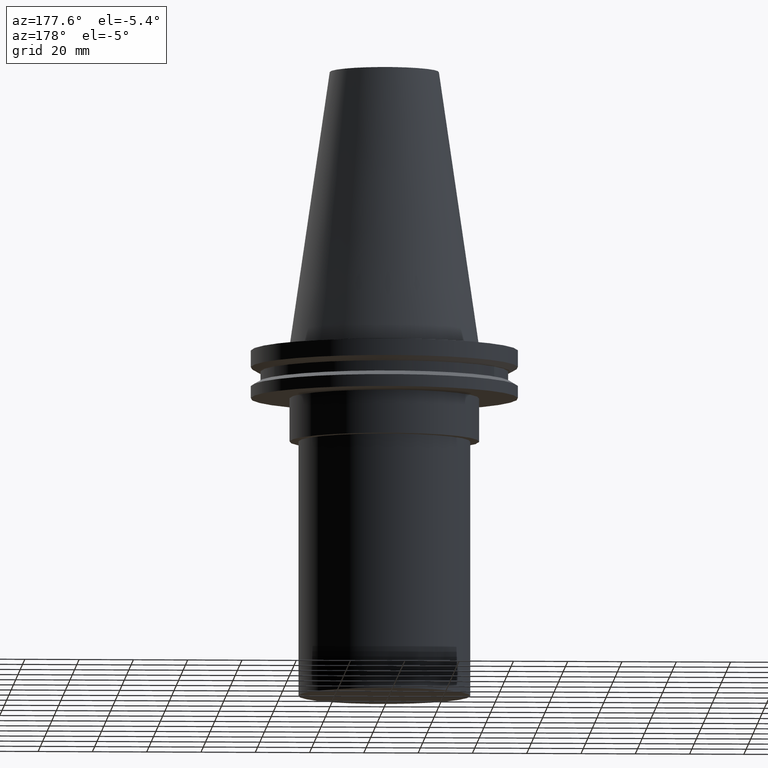
[diagram: clean part render]
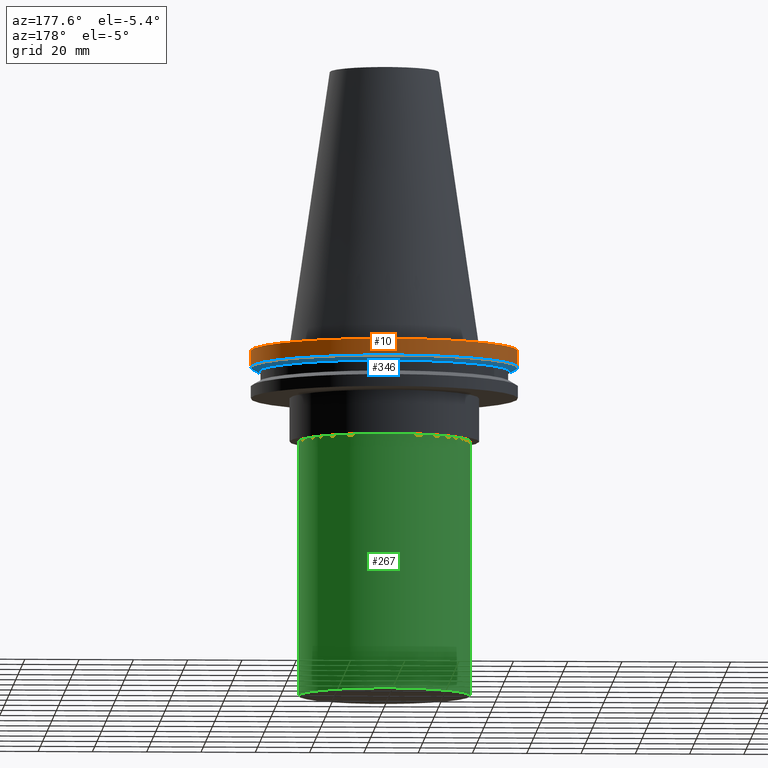
[diagram: same view with three faces highlighted in distinct colors, each labeled with its STEP entity id]
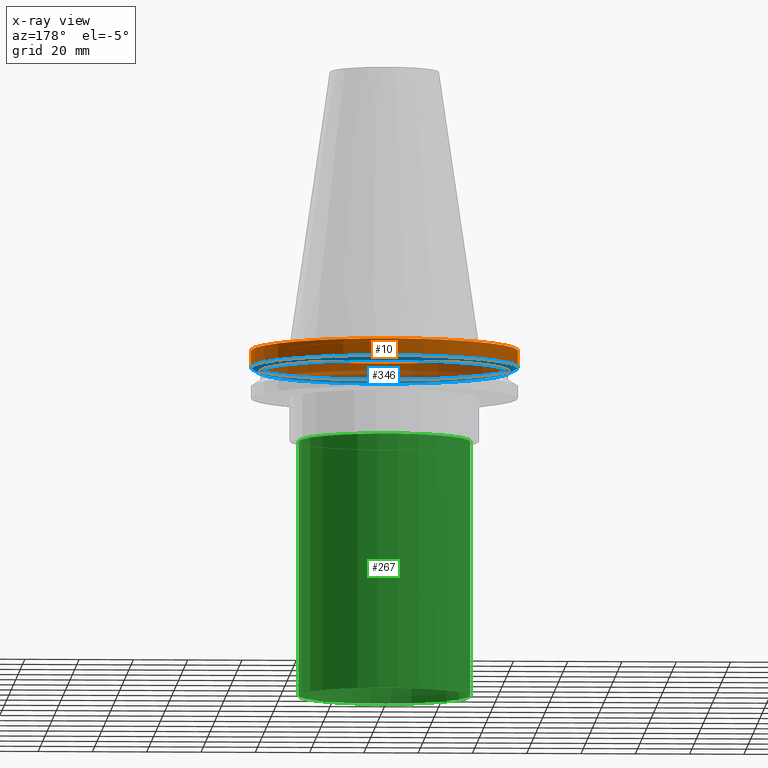
[diagram: x-ray of the same camera — body ghosted, the three highlighted faces saturated]
A machine part, auxiliary view with three faces highlighted in distinct colors.
The next image is the same camera in x-ray (body ghosted, the three faces saturated) — at least one of them is partly hidden behind the body in this view.
Their STEP definitions:

[orange] entity #10 — the highlighted cylindrical surface (bore or boss wall) has radius 49.215 mm, axis along (-0, -0, 1).
#6 = CYLINDRICAL_SURFACE ( 'NONE', #14, 49.21499999999999631 ) ;
#9 = AXIS2_PLACEMENT_3D ( 'NONE', #222, #366, #339 ) ;
#10 = ADVANCED_FACE ( 'NONE', ( #341, #227 ), #6, .T. ) ;
#14 = AXIS2_PLACEMENT_3D ( 'NONE', #94, #337, #220 ) ;
#60 = EDGE_LOOP ( 'NONE', ( #376 ) ) ;
#84 = AXIS2_PLACEMENT_3D ( 'NONE', #349, #383, #292 ) ;
#94 = CARTESIAN_POINT ( 'NONE',  ( 0.000000000000000000, 0.000000000000000000, 101.5999999999999943 ) ) ;
#96 = VERTEX_POINT ( 'NONE', #364 ) ;
#107 = EDGE_LOOP ( 'NONE', ( #303 ) ) ;
#124 = CIRCLE ( 'NONE', #9, 49.21500000000000341 ) ;
#154 = EDGE_CURVE ( 'NONE', #96, #96, #124, .T. ) ;
#220 = DIRECTION ( 'NONE',  ( 1.000000000000000000, 0.000000000000000000, 0.000000000000000000 ) ) ;
#222 = CARTESIAN_POINT ( 'NONE',  ( 0.000000000000000000, 0.000000000000000000, -7.602389855251287187 ) ) ;
#227 = FACE_OUTER_BOUND ( 'NONE', #60, .T. ) ;
#251 = VERTEX_POINT ( 'NONE', #371 ) ;
#254 = CIRCLE ( 'NONE', #84, 49.21499999999999631 ) ;
#292 = DIRECTION ( 'NONE',  ( 1.000000000000000000, 0.000000000000000000, 0.000000000000000000 ) ) ;
#303 = ORIENTED_EDGE ( 'NONE', *, *, #319, .F. ) ;
#319 = EDGE_CURVE ( 'NONE', #251, #251, #254, .T. ) ;
#337 = DIRECTION ( 'NONE',  ( -0.000000000000000000, -0.000000000000000000, 1.000000000000000000 ) ) ;
#339 = DIRECTION ( 'NONE',  ( 1.000000000000000000, 0.000000000000000000, 0.000000000000000000 ) ) ;
#341 = FACE_OUTER_BOUND ( 'NONE', #107, .T. ) ;
#349 = CARTESIAN_POINT ( 'NONE',  ( 0.000000000000000000, 0.000000000000000000, -1.499999999999987566 ) ) ;
#364 = CARTESIAN_POINT ( 'NONE',  ( 49.21500000000000341, 0.000000000000000000, -7.602389855251287187 ) ) ;
#366 = DIRECTION ( 'NONE',  ( -0.000000000000000000, -0.000000000000000000, 1.000000000000000000 ) ) ;
#371 = CARTESIAN_POINT ( 'NONE',  ( 49.21499999999999631, 0.000000000000000000, -1.499999999999987566 ) ) ;
#376 = ORIENTED_EDGE ( 'NONE', *, *, #154, .T. ) ;
#383 = DIRECTION ( 'NONE',  ( -0.000000000000000000, -0.000000000000000000, 1.000000000000000000 ) ) ;

[blue] entity #346 — the highlighted conical surface has half-angle 60 deg.
#9 = AXIS2_PLACEMENT_3D ( 'NONE', #222, #366, #339 ) ;
#27 = EDGE_LOOP ( 'NONE', ( #332 ) ) ;
#44 = AXIS2_PLACEMENT_3D ( 'NONE', #262, #211, #239 ) ;
#64 = FACE_BOUND ( 'NONE', #387, .T. ) ;
#88 = ORIENTED_EDGE ( 'NONE', *, *, #210, .T. ) ;
#93 = VERTEX_POINT ( 'NONE', #242 ) ;
#96 = VERTEX_POINT ( 'NONE', #364 ) ;
#116 = AXIS2_PLACEMENT_3D ( 'NONE', #246, #193, #336 ) ;
#124 = CIRCLE ( 'NONE', #9, 49.21500000000000341 ) ;
#154 = EDGE_CURVE ( 'NONE', #96, #96, #124, .T. ) ;
#172 = CIRCLE ( 'NONE', #44, 46.43919780457007818 ) ;
#193 = DIRECTION ( 'NONE',  ( -0.000000000000000000, -0.000000000000000000, 1.000000000000000000 ) ) ;
#210 = EDGE_CURVE ( 'NONE', #93, #93, #172, .T. ) ;
#211 = DIRECTION ( 'NONE',  ( -0.000000000000000000, -0.000000000000000000, 1.000000000000000000 ) ) ;
#222 = CARTESIAN_POINT ( 'NONE',  ( 0.000000000000000000, 0.000000000000000000, -7.602389855251287187 ) ) ;
#239 = DIRECTION ( 'NONE',  ( 1.000000000000000000, 0.000000000000000000, 0.000000000000000000 ) ) ;
#242 = CARTESIAN_POINT ( 'NONE',  ( 46.43919780457007818, 0.000000000000000000, -9.204999999999991189 ) ) ;
#246 = CARTESIAN_POINT ( 'NONE',  ( 0.000000000000000000, 0.000000000000000000, -9.204999999999991189 ) ) ;
#262 = CARTESIAN_POINT ( 'NONE',  ( 0.000000000000000000, 0.000000000000000000, -9.204999999999991189 ) ) ;
#325 = CONICAL_SURFACE ( 'NONE', #116, 46.43919780457007818, 1.047197551196575205 ) ;
#332 = ORIENTED_EDGE ( 'NONE', *, *, #154, .F. ) ;
#336 = DIRECTION ( 'NONE',  ( 1.000000000000000000, 0.000000000000000000, 0.000000000000000000 ) ) ;
#338 = FACE_OUTER_BOUND ( 'NONE', #27, .T. ) ;
#339 = DIRECTION ( 'NONE',  ( 1.000000000000000000, 0.000000000000000000, 0.000000000000000000 ) ) ;
#346 = ADVANCED_FACE ( 'NONE', ( #338, #64 ), #325, .T. ) ;
#364 = CARTESIAN_POINT ( 'NONE',  ( 49.21500000000000341, 0.000000000000000000, -7.602389855251287187 ) ) ;
#366 = DIRECTION ( 'NONE',  ( -0.000000000000000000, -0.000000000000000000, 1.000000000000000000 ) ) ;
#387 = EDGE_LOOP ( 'NONE', ( #88 ) ) ;

[green] entity #267 — the highlighted cylindrical surface (bore or boss wall) has radius 31.635 mm, axis along (-0, -0, 1).
#7 = VERTEX_POINT ( 'NONE', #221 ) ;
#12 = EDGE_LOOP ( 'NONE', ( #91 ) ) ;
#19 = FACE_OUTER_BOUND ( 'NONE', #118, .T. ) ;
#38 = CARTESIAN_POINT ( 'NONE',  ( 31.63500000000000512, 0.000000000000000000, -35.00000000000000000 ) ) ;
#41 = DIRECTION ( 'NONE',  ( -0.000000000000000000, -0.000000000000000000, 1.000000000000000000 ) ) ;
#73 = CIRCLE ( 'NONE', #234, 31.63500000000000512 ) ;
#91 = ORIENTED_EDGE ( 'NONE', *, *, #283, .T. ) ;
#111 = FACE_OUTER_BOUND ( 'NONE', #12, .T. ) ;
#118 = EDGE_LOOP ( 'NONE', ( #363 ) ) ;
#136 = CIRCLE ( 'NONE', #345, 31.63500000000000512 ) ;
#141 = DIRECTION ( 'NONE',  ( 1.000000000000000000, 0.000000000000000000, 0.000000000000000000 ) ) ;
#147 = CARTESIAN_POINT ( 'NONE',  ( 0.000000000000000000, 0.000000000000000000, -129.0000000000000000 ) ) ;
#170 = DIRECTION ( 'NONE',  ( 1.000000000000000000, 0.000000000000000000, 0.000000000000000000 ) ) ;
#195 = VERTEX_POINT ( 'NONE', #38 ) ;
#221 = CARTESIAN_POINT ( 'NONE',  ( 31.63500000000000512, 0.000000000000000000, -129.0000000000000000 ) ) ;
#234 = AXIS2_PLACEMENT_3D ( 'NONE', #147, #271, #356 ) ;
#267 = ADVANCED_FACE ( 'NONE', ( #19, #111 ), #357, .T. ) ;
#268 = AXIS2_PLACEMENT_3D ( 'NONE', #380, #41, #170 ) ;
#269 = CARTESIAN_POINT ( 'NONE',  ( 0.000000000000000000, 0.000000000000000000, -35.00000000000000000 ) ) ;
#271 = DIRECTION ( 'NONE',  ( -0.000000000000000000, -0.000000000000000000, 1.000000000000000000 ) ) ;
#283 = EDGE_CURVE ( 'NONE', #7, #7, #73, .T. ) ;
#286 = EDGE_CURVE ( 'NONE', #195, #195, #136, .T. ) ;
#345 = AXIS2_PLACEMENT_3D ( 'NONE', #269, #389, #141 ) ;
#356 = DIRECTION ( 'NONE',  ( 1.000000000000000000, 0.000000000000000000, 0.000000000000000000 ) ) ;
#357 = CYLINDRICAL_SURFACE ( 'NONE', #268, 31.63500000000000512 ) ;
#363 = ORIENTED_EDGE ( 'NONE', *, *, #286, .F. ) ;
#380 = CARTESIAN_POINT ( 'NONE',  ( 0.000000000000000000, 0.000000000000000000, 0.000000000000000000 ) ) ;
#389 = DIRECTION ( 'NONE',  ( -0.000000000000000000, -0.000000000000000000, 1.000000000000000000 ) ) ;